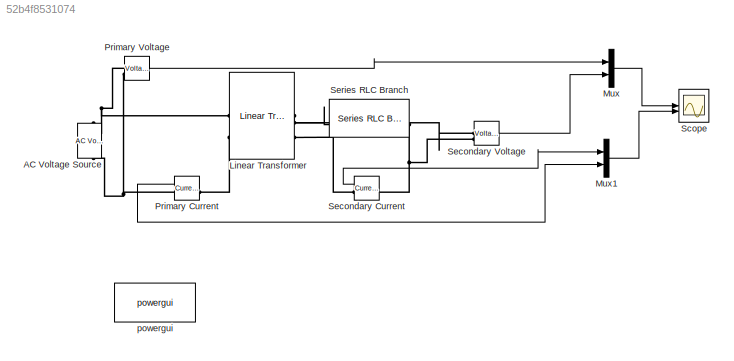
MODEL slx_52b4f8531074
KIND model
CONFIG AbsTol = auto
CONFIG EnableMultiTasking = off
CONFIG FixedStep = auto
CONFIG MaxStep = auto
CONFIG MinStep = auto
CONFIG RelTol = 1e-3
CONFIG SampleTimeConstraint = Unconstrained
CONFIG SolverName = VariableStepAuto
CONFIG StartTime = 0.0
CONFIG StopTime = .1
BLOCK [Reference] AC Voltage Source  REF=spsACVoltageSourceLib/AC Voltage Source
  LibrarySourceBlock = sps_lib/Sources/AC Voltage Source
  SourceBlock = spsACVoltageSourceLib/AC Voltage Source
  SourceType = AC Voltage Source
BLOCK [Reference] Linear Transformer  REF=spsLinearTransformerLib/Linear Transformer
  LibrarySourceBlock = sps_lib/Power Grid Elements/Linear Transformer
  SourceBlock = spsLinearTransformerLib/Linear Transformer
  SourceType = Linear Transformer
BLOCK [Mux] Mux
  DisplayOption = bar
  Inputs = 2
BLOCK [Mux] Mux1
  DisplayOption = bar
  Inputs = 2
BLOCK [Reference] Primary Current  REF=spsCurrentMeasurementLib/Current Measurement
  LibrarySourceBlock = sps_lib/Sensors and Measurements/Current Measurement
  SourceBlock = spsCurrentMeasurementLib/Current Measurement
  SourceType = Current Measurement
  UserDataPersistent = on
BLOCK [Reference] Primary Voltage  REF=spsVoltageMeasurementLib/Voltage Measurement
  LibrarySourceBlock = sps_lib/Sensors and Measurements/Voltage Measurement
  NameLocation = top
  SourceBlock = spsVoltageMeasurementLib/Voltage Measurement
  SourceType = Voltage Measurement
  UserDataPersistent = on
BLOCK [Scope] Scope
  Floating = off
  NumInputPorts = 2
  ScopeSpecificationString = Simulink.scopes.TimeScopeBlockCfg('CurrentConfiguration', extmgr.ConfigurationSet(extmgr.Configuration('Core','General UI',true,'FigureColor',[1 1 1]),extmgr.Configuration('Core','Source UI',true),extmgr.Configuration('Sources','WiredSimulink',true),extmgr.Configuration('Visuals','Time Domain',true,'SerializedDisplays',{struct('MinYLimReal','-350','MaxYLimReal','350','YLabelReal','','MinYLimMag','...<+2210ch>
BLOCK [Reference] Secondary Current  REF=spsCurrentMeasurementLib/Current Measurement
  LibrarySourceBlock = sps_lib/Sensors and Measurements/Current Measurement
  SourceBlock = spsCurrentMeasurementLib/Current Measurement
  SourceType = Current Measurement
  UserDataPersistent = on
BLOCK [Reference] Secondary Voltage   REF=spsVoltageMeasurementLib/Voltage Measurement
  LibrarySourceBlock = sps_lib/Sensors and Measurements/Voltage Measurement
  SourceBlock = spsVoltageMeasurementLib/Voltage Measurement
  SourceType = Voltage Measurement
  UserDataPersistent = on
BLOCK [Reference] Series RLC Branch  REF=spsSeriesRLCBranchLib/Series RLC Branch
  LibrarySourceBlock = sps_lib/Passives/Series RLC Branch
  SourceBlock = spsSeriesRLCBranchLib/Series RLC Branch
  SourceType = Series RLC Branch
BLOCK [Reference] powergui  REF=sps_lib/powergui
  LibrarySourceBlock = sps_lib/powergui
  Priority = 1
  SourceBlock = sps_lib/powergui
  SourceType = PSB option menu block
LINE Mux1:1 -> Scope:2
LINE Mux:1 -> Scope:1
LINE Primary Current:1 -> Mux1:2
LINE Primary Voltage:1 -> Mux:1
LINE Secondary Current:1 -> Mux1:1
LINE Secondary Voltage :1 -> Mux:2
PNET net1: AC Voltage Source:LConn1 -- Primary Current:RConn1 -- Primary Voltage:LConn2
PNET net2: AC Voltage Source:RConn1 -- Linear Transformer:LConn1 -- Primary Voltage:LConn1
PLINE Linear Transformer:LConn2 -- Primary Current:LConn1
PNET net3: Linear Transformer:RConn1 -- Secondary Voltage :LConn1 -- Series RLC Branch:LConn1
PLINE Linear Transformer:RConn2 -- Secondary Current:RConn1
PNET net4: Secondary Current:LConn1 -- Secondary Voltage :LConn2 -- Series RLC Branch:RConn1
note: PNET lines group multi-terminal physical nets as a canonical sorted terminal list (undirected conserving connections); 2-terminal nets keep the pairwise PLINE form
